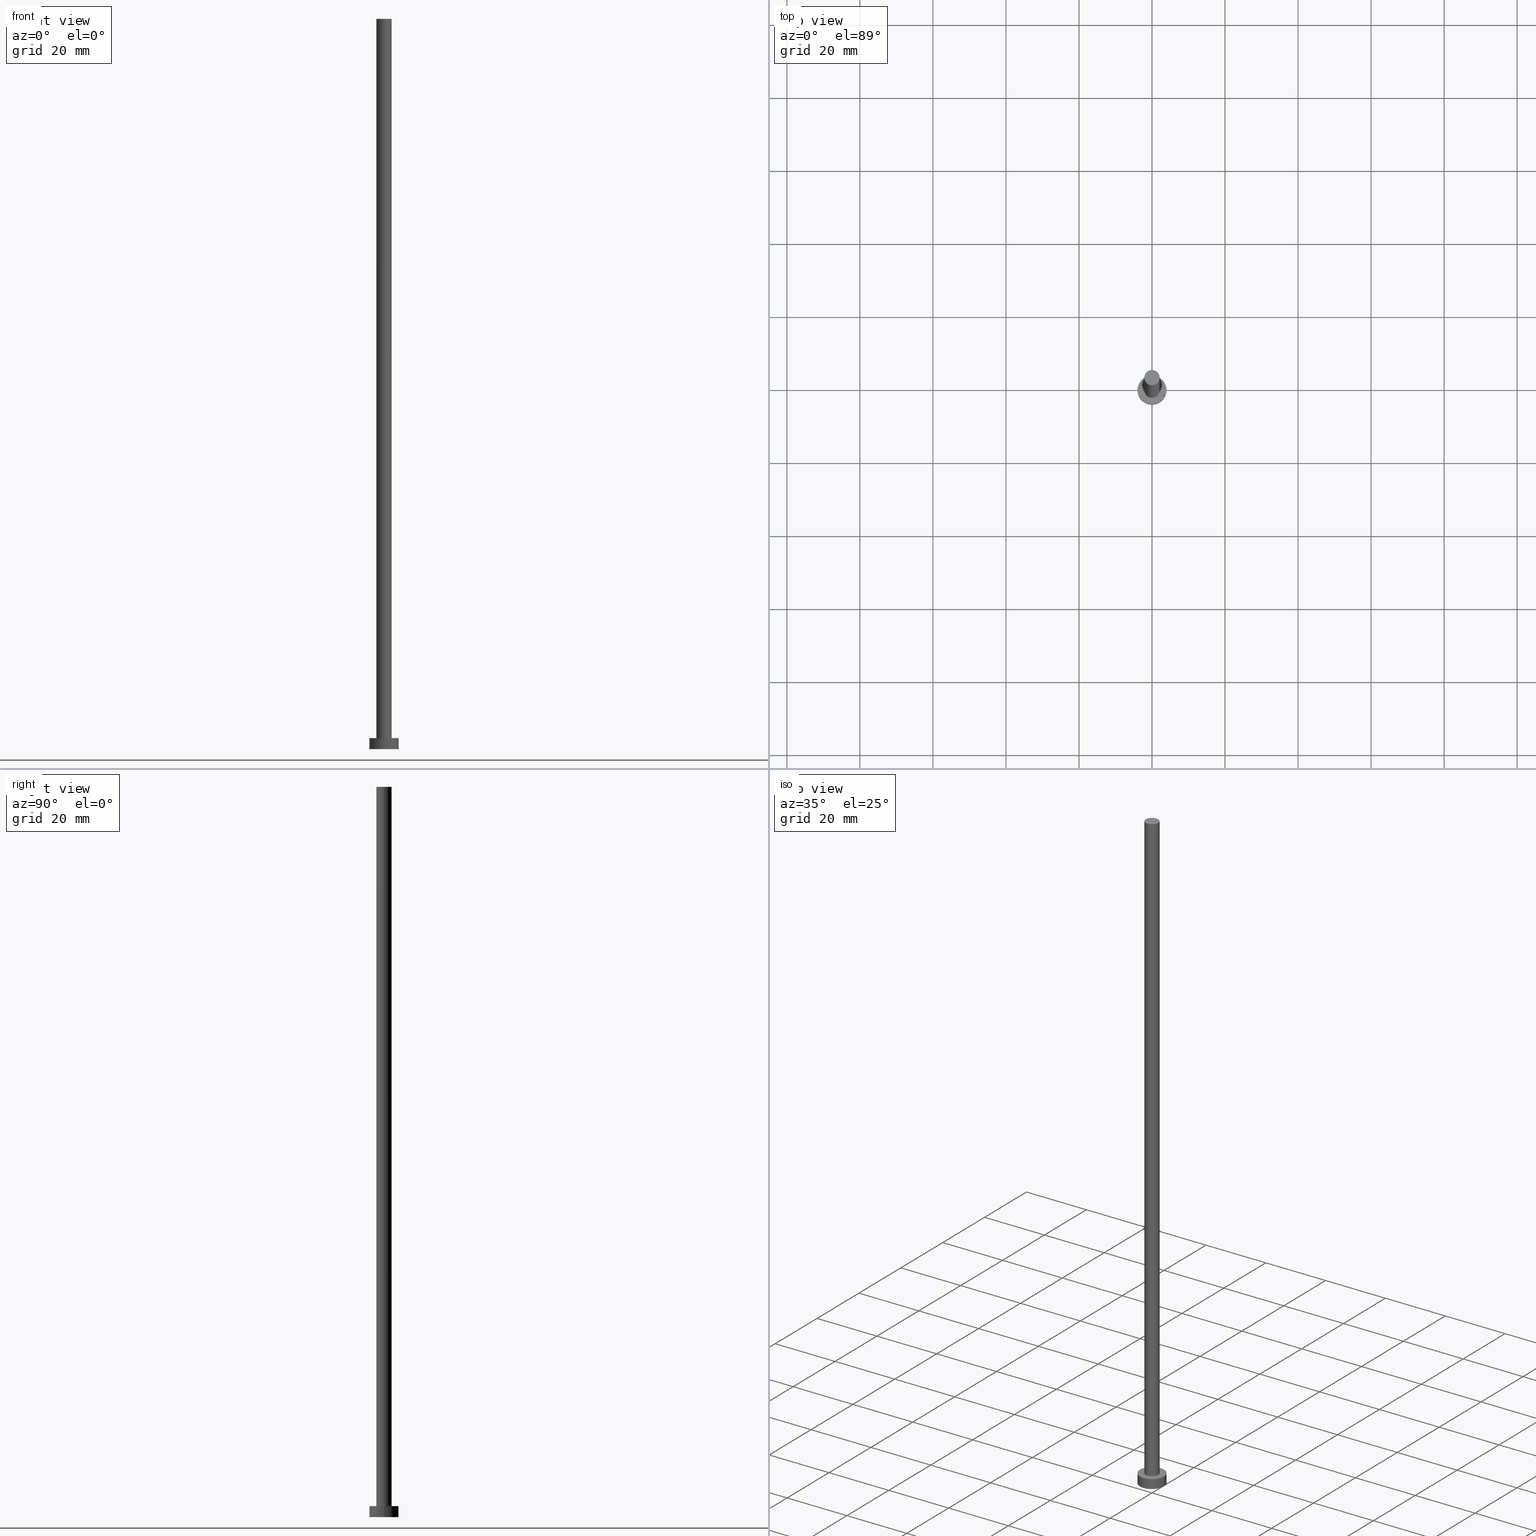
[diagram: canonical four-view strip — front | top / right | iso, engineering-drawing reading convention]
A machine part, canonical four-view strip (front | top / right | iso — engineering-drawing reading convention). The complete STEP part file that produces these views, byte-faithful:
ISO-10303-21;
HEADER;
FILE_DESCRIPTION (( 'STEP AP203' ),
    '1' );
FILE_NAME ('fa2e.STEP',
    '2023-02-12T12:00:47',
    ( '' ),
    ( '' ),
    'SwSTEP 2.0',
    'SolidWorks 2019',
    '' );
FILE_SCHEMA (( 'CONFIG_CONTROL_DESIGN' ));
ENDSEC;

DATA;
#1 = CIRCLE ( 'NONE', #193, 4.000000000000000000 ) ;
#2 = DIRECTION ( 'NONE',  ( 1.000000000000000000, 0.000000000000000000, -0.000000000000000000 ) ) ;
#3 = DIRECTION ( 'NONE',  ( 1.000000000000000000, 0.000000000000000000, 0.000000000000000000 ) ) ;
#4 = APPLICATION_PROTOCOL_DEFINITION ( 'international standard', 'config_control_design', 1994, #208 ) ;
#5 = AXIS2_PLACEMENT_3D ( 'NONE', #179, #23, #121 ) ;
#6 = ORIENTED_EDGE ( 'NONE', *, *, #173, .F. ) ;
#7 = DIRECTION ( 'NONE',  ( -1.000000000000000000, 0.000000000000000000, 0.000000000000000000 ) ) ;
#8 = SECURITY_CLASSIFICATION_LEVEL ( 'unclassified' ) ;
#9 = ORIENTED_EDGE ( 'NONE', *, *, #123, .T. ) ;
#10 = EDGE_CURVE ( 'NONE', #200, #153, #242, .T. ) ;
#11 = DIRECTION ( 'NONE',  ( 1.000000000000000000, 0.000000000000000000, 0.000000000000000000 ) ) ;
#12 = LINE ( 'NONE', #43, #22 ) ;
#13 = COORDINATED_UNIVERSAL_TIME_OFFSET ( 1, 0, .AHEAD. ) ;
#14 = PRODUCT ( 'fa2e', 'fa2e', '', ( #143 ) ) ;
#15 = ORIENTED_EDGE ( 'NONE', *, *, #194, .F. ) ;
#16 = VECTOR ( 'NONE', #18, 1000.000000000000000 ) ;
#17 = AXIS2_PLACEMENT_3D ( 'NONE', #250, #103, #32 ) ;
#18 = DIRECTION ( 'NONE',  ( -0.000000000000000000, -0.000000000000000000, -1.000000000000000000 ) ) ;
#19 = DATE_TIME_ROLE ( 'creation_date' ) ;
#20 = PLANE ( 'NONE',  #61 ) ;
#21 = APPROVAL_STATUS ( 'not_yet_approved' ) ;
#22 = VECTOR ( 'NONE', #126, 1000.000000000000000 ) ;
#23 = DIRECTION ( 'NONE',  ( 0.000000000000000000, 0.000000000000000000, 1.000000000000000000 ) ) ;
#24 = PERSON_AND_ORGANIZATION ( #33, #145 ) ;
#25 = EDGE_CURVE ( 'NONE', #253, #231, #93, .T. ) ;
#26 = COORDINATED_UNIVERSAL_TIME_OFFSET ( 1, 0, .AHEAD. ) ;
#27 = APPROVAL_PERSON_ORGANIZATION ( #38, #36, #177 ) ;
#28 = DATE_AND_TIME ( #117, #35 ) ;
#29 = DIRECTION ( 'NONE',  ( 1.000000000000000000, 0.000000000000000000, 0.000000000000000000 ) ) ;
#30 = UNCERTAINTY_MEASURE_WITH_UNIT (LENGTH_MEASURE( 1.000000000000000082E-05 ), #158, 'distance_accuracy_value', 'NONE');
#31 = ORIENTED_EDGE ( 'NONE', *, *, #10, .F. ) ;
#32 = DIRECTION ( 'NONE',  ( -1.000000000000000000, 0.000000000000000000, 0.000000000000000000 ) ) ;
#33 = PERSON ( 'NEUR�EN�', 'NEUR�EN�', 'NEUR�EN�', ('NEUR�EN�'), ('NEUR�EN�'), ('NEUR�EN�') ) ;
#34 = ORIENTED_EDGE ( 'NONE', *, *, #254, .F. ) ;
#35 = LOCAL_TIME ( 13, 0, 47.00000000000000000, #178 ) ;
#36 = APPROVAL ( #21, 'NEUR�EN�' ) ;
#37 = AXIS2_PLACEMENT_3D ( 'NONE', #168, #122, #7 ) ;
#38 = PERSON_AND_ORGANIZATION ( #33, #145 ) ;
#39 = LINE ( 'NONE', #118, #16 ) ;
#40 = DIRECTION ( 'NONE',  ( 0.000000000000000000, 0.000000000000000000, 1.000000000000000000 ) ) ;
#41 = DIRECTION ( 'NONE',  ( 0.000000000000000000, 0.000000000000000000, 1.000000000000000000 ) ) ;
#42 = FACE_OUTER_BOUND ( 'NONE', #65, .T. ) ;
#43 = CARTESIAN_POINT ( 'NONE',  ( -2.100000000000000089, 0.000000000000000000, 200.0000000000000000 ) ) ;
#44 = DIRECTION ( 'NONE',  ( 1.000000000000000000, 0.000000000000000000, 0.000000000000000000 ) ) ;
#45 = DATE_TIME_ROLE ( 'classification_date' ) ;
#46 = DIRECTION ( 'NONE',  ( -1.000000000000000000, 0.000000000000000000, 0.000000000000000000 ) ) ;
#47 = APPROVAL_ROLE ( '' ) ;
#48 = CIRCLE ( 'NONE', #228, 4.000000000000000000 ) ;
#49 = DATE_AND_TIME ( #64, #130 ) ;
#50 = ORIENTED_EDGE ( 'NONE', *, *, #123, .F. ) ;
#51 = EDGE_CURVE ( 'NONE', #211, #229, #72, .T. ) ;
#52 = DIRECTION ( 'NONE',  ( -1.000000000000000000, 0.000000000000000000, 0.000000000000000000 ) ) ;
#53 = CARTESIAN_POINT ( 'NONE',  ( -4.000000000000000000, 0.000000000000000000, 3.000000000000000000 ) ) ;
#54 = EDGE_LOOP ( 'NONE', ( #144, #240 ) ) ;
#55 = CC_DESIGN_SECURITY_CLASSIFICATION ( #246, ( #234 ) ) ;
#56 = PERSON_AND_ORGANIZATION_ROLE ( 'creator' ) ;
#57 = CARTESIAN_POINT ( 'NONE',  ( 0.000000000000000000, 0.000000000000000000, 3.000000000000000000 ) ) ;
#58 = PLANE ( 'NONE',  #217 ) ;
#59 = DIRECTION ( 'NONE',  ( 1.000000000000000000, 0.000000000000000000, -0.000000000000000000 ) ) ;
#60 =( NAMED_UNIT ( * ) PLANE_ANGLE_UNIT ( ) SI_UNIT ( $, .RADIAN. ) );
#61 = AXIS2_PLACEMENT_3D ( 'NONE', #222, #255, #59 ) ;
#62 = EDGE_LOOP ( 'NONE', ( #213, #235, #119, #68 ) ) ;
#63 = DIRECTION ( 'NONE',  ( 0.000000000000000000, 0.000000000000000000, 1.000000000000000000 ) ) ;
#64 = CALENDAR_DATE ( 2023, 12, 2 ) ;
#65 = EDGE_LOOP ( 'NONE', ( #15, #104, #84, #184 ) ) ;
#66 = EDGE_CURVE ( 'NONE', #153, #200, #182, .T. ) ;
#67 = VECTOR ( 'NONE', #146, 1000.000000000000000 ) ;
#68 = ORIENTED_EDGE ( 'NONE', *, *, #160, .F. ) ;
#69 = MANIFOLD_SOLID_BREP ( 'P�idat vysunut�m3', #89 ) ;
#70 = PRODUCT_DEFINITION_SHAPE ( 'NONE', 'NONE',  #176 ) ;
#71 = CC_DESIGN_PERSON_AND_ORGANIZATION_ASSIGNMENT ( #150, #56, ( #176 ) ) ;
#72 = CIRCLE ( 'NONE', #164, 2.100000000000000089 ) ;
#73 = CIRCLE ( 'NONE', #125, 2.100000000000000089 ) ;
#74 = DIRECTION ( 'NONE',  ( 0.000000000000000000, 0.000000000000000000, 1.000000000000000000 ) ) ;
#75 = CC_DESIGN_PERSON_AND_ORGANIZATION_ASSIGNMENT ( #24, #100, ( #14 ) ) ;
#76 = ORIENTED_EDGE ( 'NONE', *, *, #152, .F. ) ;
#77 = DIRECTION ( 'NONE',  ( 1.000000000000000000, 0.000000000000000000, 0.000000000000000000 ) ) ;
#78 = APPROVAL_STATUS ( 'not_yet_approved' ) ;
#79 = ADVANCED_FACE ( 'NONE', ( #42 ), #187, .T. ) ;
#80 = DIRECTION ( 'NONE',  ( 1.000000000000000000, 0.000000000000000000, 0.000000000000000000 ) ) ;
#81 = DIRECTION ( 'NONE',  ( 1.000000000000000000, 0.000000000000000000, 0.000000000000000000 ) ) ;
#82 = PERSON_AND_ORGANIZATION_ROLE ( 'classification_officer' ) ;
#83 = DESIGN_CONTEXT ( 'detailed design', #208, 'design' ) ;
#84 = ORIENTED_EDGE ( 'NONE', *, *, #141, .T. ) ;
#85 = LOCAL_TIME ( 13, 0, 47.00000000000000000, #198 ) ;
#86 = CARTESIAN_POINT ( 'NONE',  ( 0.000000000000000000, 0.000000000000000000, 200.0000000000000000 ) ) ;
#87 = CARTESIAN_POINT ( 'NONE',  ( 0.000000000000000000, 0.000000000000000000, 200.0000000000000000 ) ) ;
#88 = ORIENTED_EDGE ( 'NONE', *, *, #194, .T. ) ;
#89 = CLOSED_SHELL ( 'NONE', ( #131, #171, #97, #221, #214, #79, #201 ) ) ;
#90 = ADVANCED_BREP_SHAPE_REPRESENTATION ( 'fa2e', ( #69, #209 ), #101 ) ;
#91 = CC_DESIGN_PERSON_AND_ORGANIZATION_ASSIGNMENT ( #251, #227, ( #234 ) ) ;
#92 = APPROVAL_DATE_TIME ( #183, #127 ) ;
#93 = CIRCLE ( 'NONE', #238, 4.000000000000000000 ) ;
#94 = EDGE_LOOP ( 'NONE', ( #34, #6 ) ) ;
#95 = ORIENTED_EDGE ( 'NONE', *, *, #25, .T. ) ;
#96 = AXIS2_PLACEMENT_3D ( 'NONE', #86, #206, #44 ) ;
#97 = ADVANCED_FACE ( 'NONE', ( #138 ), #203, .T. ) ;
#98 = ORIENTED_EDGE ( 'NONE', *, *, #51, .F. ) ;
#99 = CARTESIAN_POINT ( 'NONE',  ( 0.000000000000000000, 0.000000000000000000, 0.000000000000000000 ) ) ;
#100 = PERSON_AND_ORGANIZATION_ROLE ( 'design_owner' ) ;
#101 =( GEOMETRIC_REPRESENTATION_CONTEXT ( 3 ) GLOBAL_UNCERTAINTY_ASSIGNED_CONTEXT ( ( #30 ) ) GLOBAL_UNIT_ASSIGNED_CONTEXT ( ( #158, #60, #137 ) ) REPRESENTATION_CONTEXT ( 'NONE', 'WORKASPACE' ) );
#102 = CALENDAR_DATE ( 2023, 12, 2 ) ;
#103 = DIRECTION ( 'NONE',  ( -0.000000000000000000, -0.000000000000000000, -1.000000000000000000 ) ) ;
#104 = ORIENTED_EDGE ( 'NONE', *, *, #66, .F. ) ;
#105 = APPLICATION_PROTOCOL_DEFINITION ( 'international standard', 'config_control_design', 1994, #166 ) ;
#106 = DIRECTION ( 'NONE',  ( -0.000000000000000000, -0.000000000000000000, -1.000000000000000000 ) ) ;
#107 = AXIS2_PLACEMENT_3D ( 'NONE', #87, #244, #46 ) ;
#108 = CC_DESIGN_PERSON_AND_ORGANIZATION_ASSIGNMENT ( #226, #147, ( #234 ) ) ;
#109 = DIRECTION ( 'NONE',  ( 0.000000000000000000, 0.000000000000000000, 1.000000000000000000 ) ) ;
#110 = COORDINATED_UNIVERSAL_TIME_OFFSET ( 1, 0, .AHEAD. ) ;
#111 = APPROVAL_DATE_TIME ( #49, #113 ) ;
#112 = ORIENTED_EDGE ( 'NONE', *, *, #160, .T. ) ;
#113 = APPROVAL ( #207, 'NEUR�EN�' ) ;
#114 = CC_DESIGN_APPROVAL ( #36, ( #234 ) ) ;
#115 = DIRECTION ( 'NONE',  ( -0.000000000000000000, -0.000000000000000000, -1.000000000000000000 ) ) ;
#116 = CARTESIAN_POINT ( 'NONE',  ( -4.000000000000000000, 0.000000000000000000, 3.000000000000000000 ) ) ;
#117 = CALENDAR_DATE ( 2023, 12, 2 ) ;
#118 = CARTESIAN_POINT ( 'NONE',  ( 2.100000000000000089, 2.571758278209441957E-16, 200.0000000000000000 ) ) ;
#119 = ORIENTED_EDGE ( 'NONE', *, *, #173, .T. ) ;
#120 = DIRECTION ( 'NONE',  ( 1.000000000000000000, 0.000000000000000000, -0.000000000000000000 ) ) ;
#121 = DIRECTION ( 'NONE',  ( 1.000000000000000000, 0.000000000000000000, 0.000000000000000000 ) ) ;
#122 = DIRECTION ( 'NONE',  ( -0.000000000000000000, -0.000000000000000000, -1.000000000000000000 ) ) ;
#123 = EDGE_CURVE ( 'NONE', #229, #211, #73, .T. ) ;
#124 = AXIS2_PLACEMENT_3D ( 'NONE', #196, #74, #2 ) ;
#125 = AXIS2_PLACEMENT_3D ( 'NONE', #185, #109, #81 ) ;
#126 = DIRECTION ( 'NONE',  ( -0.000000000000000000, -0.000000000000000000, -1.000000000000000000 ) ) ;
#127 = APPROVAL ( #78, 'NEUR�EN�' ) ;
#128 = ORIENTED_EDGE ( 'NONE', *, *, #248, .F. ) ;
#129 = CARTESIAN_POINT ( 'NONE',  ( 0.000000000000000000, 0.000000000000000000, 3.000000000000000000 ) ) ;
#130 = LOCAL_TIME ( 13, 0, 47.00000000000000000, #110 ) ;
#131 = ADVANCED_FACE ( 'NONE', ( #245 ), #163, .T. ) ;
#132 = CARTESIAN_POINT ( 'NONE',  ( -2.100000000000000089, 0.000000000000000000, 200.0000000000000000 ) ) ;
#133 = CARTESIAN_POINT ( 'NONE',  ( 4.000000000000000000, 4.898587196589412829E-16, 3.000000000000000000 ) ) ;
#134 = EDGE_LOOP ( 'NONE', ( #98, #50 ) ) ;
#135 = CARTESIAN_POINT ( 'NONE',  ( 0.000000000000000000, 0.000000000000000000, 200.0000000000000000 ) ) ;
#136 = CARTESIAN_POINT ( 'NONE',  ( 2.100000000000000089, 2.571758278209441957E-16, 3.000000000000000000 ) ) ;
#137 =( NAMED_UNIT ( * ) SI_UNIT ( $, .STERADIAN. ) SOLID_ANGLE_UNIT ( ) );
#138 = FACE_OUTER_BOUND ( 'NONE', #170, .T. ) ;
#139 = CALENDAR_DATE ( 2023, 12, 2 ) ;
#140 = LINE ( 'NONE', #191, #224 ) ;
#141 = EDGE_CURVE ( 'NONE', #153, #211, #12, .T. ) ;
#142 = EDGE_LOOP ( 'NONE', ( #148, #95 ) ) ;
#143 = MECHANICAL_CONTEXT ( 'NONE', #166, 'mechanical' ) ;
#144 = ORIENTED_EDGE ( 'NONE', *, *, #66, .T. ) ;
#145 = ORGANIZATION ( 'NEUR�EN�', 'NEUR�EN�', '' ) ;
#146 = DIRECTION ( 'NONE',  ( -0.000000000000000000, -0.000000000000000000, -1.000000000000000000 ) ) ;
#147 = PERSON_AND_ORGANIZATION_ROLE ( 'design_supplier' ) ;
#148 = ORIENTED_EDGE ( 'NONE', *, *, #248, .T. ) ;
#149 = CARTESIAN_POINT ( 'NONE',  ( -4.000000000000000000, 0.000000000000000000, 0.000000000000000000 ) ) ;
#150 = PERSON_AND_ORGANIZATION ( #33, #145 ) ;
#151 = APPROVAL_PERSON_ORGANIZATION ( #188, #127, #161 ) ;
#152 = EDGE_CURVE ( 'NONE', #253, #181, #140, .T. ) ;
#153 = VERTEX_POINT ( 'NONE', #132 ) ;
#154 = DATE_AND_TIME ( #175, #85 ) ;
#155 = CARTESIAN_POINT ( 'NONE',  ( 4.000000000000000000, 4.898587196589412829E-16, 0.000000000000000000 ) ) ;
#156 = CC_DESIGN_DATE_AND_TIME_ASSIGNMENT ( #212, #45, ( #246 ) ) ;
#157 = FACE_OUTER_BOUND ( 'NONE', #54, .T. ) ;
#158 =( LENGTH_UNIT ( ) NAMED_UNIT ( * ) SI_UNIT ( .MILLI., .METRE. ) );
#159 = CIRCLE ( 'NONE', #5, 4.000000000000000000 ) ;
#160 = EDGE_CURVE ( 'NONE', #231, #165, #216, .T. ) ;
#161 = APPROVAL_ROLE ( '' ) ;
#162 = ORIENTED_EDGE ( 'NONE', *, *, #254, .T. ) ;
#163 = CYLINDRICAL_SURFACE ( 'NONE', #107, 2.100000000000000089 ) ;
#164 = AXIS2_PLACEMENT_3D ( 'NONE', #223, #225, #80 ) ;
#165 = VERTEX_POINT ( 'NONE', #149 ) ;
#166 = APPLICATION_CONTEXT ( 'configuration controlled 3d designs of mechanical parts and assemblies' ) ;
#167 = ORIENTED_EDGE ( 'NONE', *, *, #141, .F. ) ;
#168 = CARTESIAN_POINT ( 'NONE',  ( 0.000000000000000000, 0.000000000000000000, 200.0000000000000000 ) ) ;
#169 = APPROVAL_DATE_TIME ( #28, #36 ) ;
#170 = EDGE_LOOP ( 'NONE', ( #76, #128, #112, #162 ) ) ;
#171 = ADVANCED_FACE ( 'NONE', ( #230 ), #232, .T. ) ;
#172 = LOCAL_TIME ( 13, 0, 47.00000000000000000, #13 ) ;
#173 = EDGE_CURVE ( 'NONE', #181, #165, #159, .T. ) ;
#174 = CC_DESIGN_APPROVAL ( #113, ( #246 ) ) ;
#175 = CALENDAR_DATE ( 2023, 12, 2 ) ;
#176 = PRODUCT_DEFINITION ( 'NEZN�M�', '', #234, #83 ) ;
#177 = APPROVAL_ROLE ( '' ) ;
#178 = COORDINATED_UNIVERSAL_TIME_OFFSET ( 1, 0, .AHEAD. ) ;
#179 = CARTESIAN_POINT ( 'NONE',  ( 0.000000000000000000, 0.000000000000000000, 0.000000000000000000 ) ) ;
#180 = DIRECTION ( 'NONE',  ( 0.000000000000000000, 0.000000000000000000, 1.000000000000000000 ) ) ;
#181 = VERTEX_POINT ( 'NONE', #155 ) ;
#182 = CIRCLE ( 'NONE', #96, 2.100000000000000089 ) ;
#183 = DATE_AND_TIME ( #102, #252 ) ;
#184 = ORIENTED_EDGE ( 'NONE', *, *, #51, .T. ) ;
#185 = CARTESIAN_POINT ( 'NONE',  ( 0.000000000000000000, 0.000000000000000000, 3.000000000000000000 ) ) ;
#186 = PRODUCT_RELATED_PRODUCT_CATEGORY ( 'detail', '', ( #14 ) ) ;
#187 = CYLINDRICAL_SURFACE ( 'NONE', #37, 2.100000000000000089 ) ;
#188 = PERSON_AND_ORGANIZATION ( #33, #145 ) ;
#189 = AXIS2_PLACEMENT_3D ( 'NONE', #135, #220, #243 ) ;
#190 = CARTESIAN_POINT ( 'NONE',  ( 0.000000000000000000, 0.000000000000000000, 0.000000000000000000 ) ) ;
#191 = CARTESIAN_POINT ( 'NONE',  ( 4.000000000000000000, 4.898587196589412829E-16, 3.000000000000000000 ) ) ;
#192 = SHAPE_DEFINITION_REPRESENTATION ( #70, #90 ) ;
#193 = AXIS2_PLACEMENT_3D ( 'NONE', #57, #41, #3 ) ;
#194 = EDGE_CURVE ( 'NONE', #200, #229, #39, .T. ) ;
#195 = APPROVAL_PERSON_ORGANIZATION ( #249, #113, #47 ) ;
#196 = CARTESIAN_POINT ( 'NONE',  ( 0.000000000000000000, 0.000000000000000000, 200.0000000000000000 ) ) ;
#197 = EDGE_LOOP ( 'NONE', ( #31, #88, #9, #167 ) ) ;
#198 = COORDINATED_UNIVERSAL_TIME_OFFSET ( 1, 0, .AHEAD. ) ;
#199 = FACE_OUTER_BOUND ( 'NONE', #94, .T. ) ;
#200 = VERTEX_POINT ( 'NONE', #236 ) ;
#201 = ADVANCED_FACE ( 'NONE', ( #157 ), #202, .T. ) ;
#202 = PLANE ( 'NONE',  #124 ) ;
#203 = CYLINDRICAL_SURFACE ( 'NONE', #17, 4.000000000000000000 ) ;
#204 = CC_DESIGN_DATE_AND_TIME_ASSIGNMENT ( #154, #19, ( #176 ) ) ;
#205 = DIRECTION ( 'NONE',  ( 0.000000000000000000, 0.000000000000000000, 1.000000000000000000 ) ) ;
#206 = DIRECTION ( 'NONE',  ( 0.000000000000000000, 0.000000000000000000, 1.000000000000000000 ) ) ;
#207 = APPROVAL_STATUS ( 'not_yet_approved' ) ;
#208 = APPLICATION_CONTEXT ( 'configuration controlled 3d designs of mechanical parts and assemblies' ) ;
#209 = AXIS2_PLACEMENT_3D ( 'NONE', #190, #63, #11 ) ;
#210 = PERSON_AND_ORGANIZATION ( #33, #145 ) ;
#211 = VERTEX_POINT ( 'NONE', #218 ) ;
#212 = DATE_AND_TIME ( #139, #172 ) ;
#213 = ORIENTED_EDGE ( 'NONE', *, *, #25, .F. ) ;
#214 = ADVANCED_FACE ( 'NONE', ( #199 ), #58, .F. ) ;
#215 = CC_DESIGN_APPROVAL ( #127, ( #176 ) ) ;
#216 = LINE ( 'NONE', #116, #67 ) ;
#217 = AXIS2_PLACEMENT_3D ( 'NONE', #99, #180, #120 ) ;
#218 = CARTESIAN_POINT ( 'NONE',  ( -2.100000000000000089, 0.000000000000000000, 3.000000000000000000 ) ) ;
#219 = CARTESIAN_POINT ( 'NONE',  ( 0.000000000000000000, 0.000000000000000000, 0.000000000000000000 ) ) ;
#220 = DIRECTION ( 'NONE',  ( 0.000000000000000000, 0.000000000000000000, 1.000000000000000000 ) ) ;
#221 = ADVANCED_FACE ( 'NONE', ( #241, #239 ), #20, .T. ) ;
#222 = CARTESIAN_POINT ( 'NONE',  ( 0.000000000000000000, 0.000000000000000000, 3.000000000000000000 ) ) ;
#223 = CARTESIAN_POINT ( 'NONE',  ( 0.000000000000000000, 0.000000000000000000, 3.000000000000000000 ) ) ;
#224 = VECTOR ( 'NONE', #106, 1000.000000000000000 ) ;
#225 = DIRECTION ( 'NONE',  ( 0.000000000000000000, 0.000000000000000000, 1.000000000000000000 ) ) ;
#226 = PERSON_AND_ORGANIZATION ( #33, #145 ) ;
#227 = PERSON_AND_ORGANIZATION_ROLE ( 'creator' ) ;
#228 = AXIS2_PLACEMENT_3D ( 'NONE', #219, #40, #77 ) ;
#229 = VERTEX_POINT ( 'NONE', #136 ) ;
#230 = FACE_OUTER_BOUND ( 'NONE', #62, .T. ) ;
#231 = VERTEX_POINT ( 'NONE', #53 ) ;
#232 = CYLINDRICAL_SURFACE ( 'NONE', #237, 4.000000000000000000 ) ;
#233 = CC_DESIGN_PERSON_AND_ORGANIZATION_ASSIGNMENT ( #210, #82, ( #246 ) ) ;
#234 = PRODUCT_DEFINITION_FORMATION_WITH_SPECIFIED_SOURCE ( 'LIBOVOLN�', '', #14, .NOT_KNOWN. ) ;
#235 = ORIENTED_EDGE ( 'NONE', *, *, #152, .T. ) ;
#236 = CARTESIAN_POINT ( 'NONE',  ( 2.100000000000000089, 2.571758278209441957E-16, 200.0000000000000000 ) ) ;
#237 = AXIS2_PLACEMENT_3D ( 'NONE', #129, #115, #52 ) ;
#238 = AXIS2_PLACEMENT_3D ( 'NONE', #247, #205, #29 ) ;
#239 = FACE_OUTER_BOUND ( 'NONE', #142, .T. ) ;
#240 = ORIENTED_EDGE ( 'NONE', *, *, #10, .T. ) ;
#241 = FACE_BOUND ( 'NONE', #134, .T. ) ;
#242 = CIRCLE ( 'NONE', #189, 2.100000000000000089 ) ;
#243 = DIRECTION ( 'NONE',  ( 1.000000000000000000, 0.000000000000000000, 0.000000000000000000 ) ) ;
#244 = DIRECTION ( 'NONE',  ( -0.000000000000000000, -0.000000000000000000, -1.000000000000000000 ) ) ;
#245 = FACE_OUTER_BOUND ( 'NONE', #197, .T. ) ;
#246 = SECURITY_CLASSIFICATION ( '', '', #8 ) ;
#247 = CARTESIAN_POINT ( 'NONE',  ( 0.000000000000000000, 0.000000000000000000, 3.000000000000000000 ) ) ;
#248 = EDGE_CURVE ( 'NONE', #231, #253, #1, .T. ) ;
#249 = PERSON_AND_ORGANIZATION ( #33, #145 ) ;
#250 = CARTESIAN_POINT ( 'NONE',  ( 0.000000000000000000, 0.000000000000000000, 3.000000000000000000 ) ) ;
#251 = PERSON_AND_ORGANIZATION ( #33, #145 ) ;
#252 = LOCAL_TIME ( 13, 0, 47.00000000000000000, #26 ) ;
#253 = VERTEX_POINT ( 'NONE', #133 ) ;
#254 = EDGE_CURVE ( 'NONE', #165, #181, #48, .T. ) ;
#255 = DIRECTION ( 'NONE',  ( 0.000000000000000000, 0.000000000000000000, 1.000000000000000000 ) ) ;
ENDSEC;
END-ISO-10303-21;
